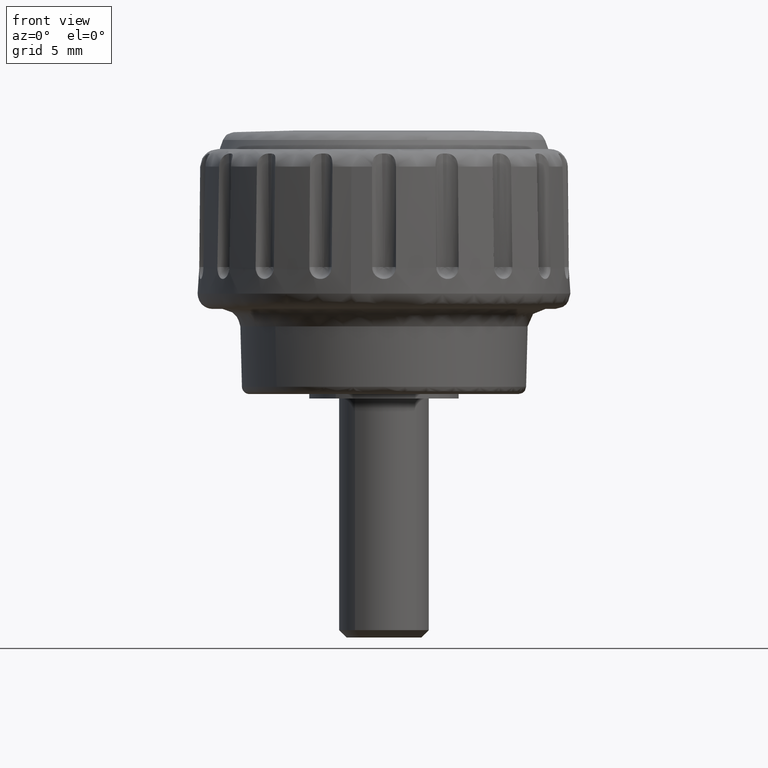
[diagram: clean part render]
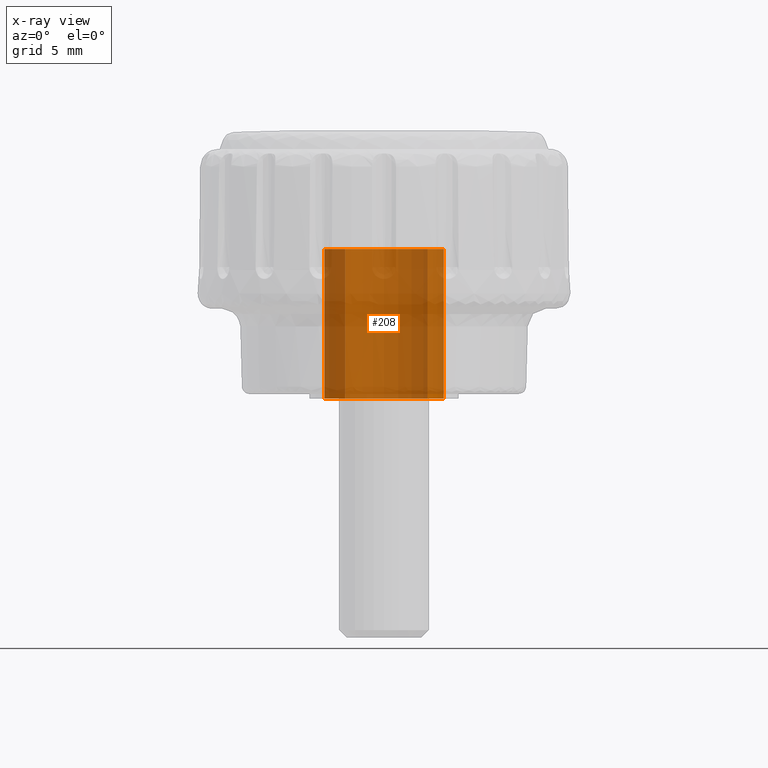
[diagram: x-ray — body ghosted, one internal face saturated and labeled with its STEP entity id]
A machine part, front view, then the same camera in x-ray: the body is ghosted and one INTERNAL B-rep face — a face not visible from any outside direction — is saturated and labeled: STEP entity #208.
In plain terms, the highlighted face is a freeform B-spline surface patch.
Its self-contained STEP definition (entity closure, byte-faithful):
#44=CARTESIAN_POINT('',(-2.582968153528102,-3.054222571761859,10.250000000000002));
#45=CARTESIAN_POINT('',(-2.670378691349159,-2.980299132926059,10.250000000000005));
#46=CARTESIAN_POINT('',(-2.753418302775015,-2.901497484049150,10.250000000000000));
#47=CARTESIAN_POINT('',(-5.654915786824165,-0.148079181274134,10.250000000000002));
#48=CARTESIAN_POINT('',(-2.901497484049150,2.753418302775015,10.250000000000000));
#49=CARTESIAN_POINT('',(-0.148079181274134,5.654915786824165,10.250000000000002));
#50=CARTESIAN_POINT('',(2.753418302775015,2.901497484049150,10.250000000000000));
#51=CARTESIAN_POINT('',(5.654915786824165,0.148079181274134,10.250000000000002));
#52=CARTESIAN_POINT('',(2.901497484049150,-2.753418302775015,10.250000000000000));
#53=CARTESIAN_POINT('',(-2.582968153528102,-3.054222571761859,-0.256250000000000));
#54=CARTESIAN_POINT('',(-2.670378691349159,-2.980299132926059,-0.256250000000000));
#55=CARTESIAN_POINT('',(-2.753418302775015,-2.901497484049150,-0.256250000000000));
#56=CARTESIAN_POINT('',(-5.654915786824165,-0.148079181274134,-0.256250000000000));
#57=CARTESIAN_POINT('',(-2.901497484049150,2.753418302775015,-0.256250000000000));
#58=CARTESIAN_POINT('',(-0.148079181274134,5.654915786824165,-0.256250000000000));
#59=CARTESIAN_POINT('',(2.753418302775015,2.901497484049150,-0.256250000000000));
#60=CARTESIAN_POINT('',(5.654915786824165,0.148079181274134,-0.256250000000000));
#61=CARTESIAN_POINT('',(2.901497484049150,-2.753418302775015,-0.256250000000000));
#69=(BOUNDED_SURFACE()B_SPLINE_SURFACE(2,1,((#44,#53),(#45,#54),(#46,#55),(#47,#56),(#48,#57),(#49,#58),(#50,#59),(#51,#60),(#52,#61)),.UNSPECIFIED.,.F.,.F.,.U.)B_SPLINE_SURFACE_WITH_KNOTS((3,2,2,2,3),(2,2),(0.0,0.265096679918781,6.892513677888300,13.519930675857820,20.147347673827340),(0.0,10.506250000000000),.UNSPECIFIED.)GEOMETRIC_REPRESENTATION_ITEM()RATIONAL_B_SPLINE_SURFACE(((0.977505800795127,0.977505800795127),(0.988284271247462,0.988284271247462),(1.0,1.0),(0.707106781186548,0.707106781186548),(1.0,1.0),(0.707106781186548,0.707106781186548),(1.0,1.0),(0.707106781186548,0.707106781186548),(1.0,1.0)))REPRESENTATION_ITEM('')SURFACE());
#70=CARTESIAN_POINT('',(-2.582968228409304,-3.054222662846994,10.000000000000311));
#71=VERTEX_POINT('',#70);
#72=CARTESIAN_POINT('',(-4.0,0.0,10.0));
#73=VERTEX_POINT('',#72);
#74=CARTESIAN_POINT('',(-2.582968228409304,-3.054222662846994,10.000000000000311));
#75=CARTESIAN_POINT('',(-2.790299187897088,-2.878929254946721,10.000000000000300));
#76=CARTESIAN_POINT('',(-3.150102602204959,-2.505548429863373,10.000000000000250));
#77=CARTESIAN_POINT('',(-3.524875563273476,-1.925377263401428,10.000000000000210));
#78=CARTESIAN_POINT('',(-3.793278250479340,-1.320193302661440,10.000000000000099));
#79=CARTESIAN_POINT('',(-3.959977261305121,-0.696848903108914,10.000000000000099));
#80=CARTESIAN_POINT('',(-4.000014350286992,-0.226250289663778,10.0));
#81=CARTESIAN_POINT('',(-4.0,0.0,10.0));
#82=B_SPLINE_CURVE_WITH_KNOTS('',3,(#74,#75,#76,#77,#78,#79,#80,#81),.UNSPECIFIED.,.F.,.U.,(4,1,1,1,1,4),(7.032450E-009,0.814502709721208,1.547557369222819,2.063407190099790,2.796462276849378,3.475213214888434),.UNSPECIFIED.);
#83=EDGE_CURVE('',#71,#73,#82,.T.);
#84=ORIENTED_EDGE('',*,*,#83,.T.);
#85=CARTESIAN_POINT('',(0.000000478248081,3.999999999999972,10.0));
#86=VERTEX_POINT('',#85);
#87=CARTESIAN_POINT('',(-4.0,0.0,10.0));
#88=CARTESIAN_POINT('',(-4.000101983396650,0.351803802842232,10.0));
#89=CARTESIAN_POINT('',(-3.929390376881856,0.883524720167455,10.000000000000011));
#90=CARTESIAN_POINT('',(-3.710593726569787,1.519333097755888,9.999999999999991));
#91=CARTESIAN_POINT('',(-3.482078247280734,1.991227958297576,10.000000000000011));
#92=CARTESIAN_POINT('',(-3.162900286440797,2.478584624450654,10.0));
#93=CARTESIAN_POINT('',(-2.661471402162749,3.021761900998665,10.000000000000011));
#94=CARTESIAN_POINT('',(-2.047731382651054,3.465352923066428,9.999999999999986));
#95=CARTESIAN_POINT('',(-1.339662867755248,3.792292001025145,10.000000000000030));
#96=CARTESIAN_POINT('',(-0.670860399013456,3.964179002919046,9.999999999999936));
#97=CARTESIAN_POINT('',(-0.204527711563020,4.000006663268072,10.000000000000110));
#98=CARTESIAN_POINT('',(0.000000478248081,3.999999999999972,10.0));
#99=B_SPLINE_CURVE_WITH_KNOTS('',3,(#87,#88,#89,#90,#91,#92,#93,#94,#95,#96,#97,#98),.UNSPECIFIED.,.F.,.U.,(4,1,1,1,1,1,1,1,1,4),(0.000000020633886,1.055376620540182,1.595342809258622,2.012589635222373,2.626185664075930,3.337938344018138,4.221519692194979,4.884203401033746,5.669608384431435,6.283195433223491),.UNSPECIFIED.);
#100=EDGE_CURVE('',#73,#86,#99,.T.);
#101=ORIENTED_EDGE('',*,*,#100,.T.);
#102=CARTESIAN_POINT('',(4.0,0.0,10.0));
#103=VERTEX_POINT('',#102);
#104=CARTESIAN_POINT('',(0.000000478248081,3.999999999999972,10.0));
#105=CARTESIAN_POINT('',(0.253619504692653,4.000029070373083,10.000000000000041));
#106=CARTESIAN_POINT('',(0.769028549815878,3.950820701903029,9.999999999999959));
#107=CARTESIAN_POINT('',(1.462579658958273,3.745091417141686,10.000000000000030));
#108=CARTESIAN_POINT('',(2.145257544536728,3.404080656601433,10.0));
#109=CARTESIAN_POINT('',(2.734831466035902,2.955539947859465,9.999999999999966));
#110=CARTESIAN_POINT('',(3.211926232240587,2.412553746691041,10.000000000000011));
#111=CARTESIAN_POINT('',(3.543780892948864,1.884916361316323,10.000000000000011));
#112=CARTESIAN_POINT('',(3.776492292563614,1.359937433050034,10.0));
#113=CARTESIAN_POINT('',(3.953428229594067,0.728112852075299,9.999999999999991));
#114=CARTESIAN_POINT('',(4.000040421017665,0.269981707979491,10.0));
#115=CARTESIAN_POINT('',(4.0,0.0,10.0));
#116=B_SPLINE_CURVE_WITH_KNOTS('',3,(#104,#105,#106,#107,#108,#109,#110,#111,#112,#113,#114,#115),.UNSPECIFIED.,.F.,.U.,(4,1,1,1,1,1,1,1,1,4),(0.000000020678510,0.760853242953878,1.546254916348981,2.159851792219121,3.043428951095123,3.755184453205834,4.319694080564363,4.908747613278798,5.473258363743080,6.283194894125577),.UNSPECIFIED.);
#117=EDGE_CURVE('',#86,#103,#116,.T.);
#118=ORIENTED_EDGE('',*,*,#117,.T.);
#119=CARTESIAN_POINT('',(2.901497394955244,-2.753418223205917,9.999999999999979));
#120=VERTEX_POINT('',#119);
#121=CARTESIAN_POINT('',(4.0,0.0,10.0));
#122=CARTESIAN_POINT('',(4.000024459200973,-0.237257680882633,10.000000000000020));
#123=CARTESIAN_POINT('',(3.967531257062970,-0.601040175948857,9.999999999999989));
#124=CARTESIAN_POINT('',(3.836597919139694,-1.172114771930265,9.999999999999991));
#125=CARTESIAN_POINT('',(3.648583269968377,-1.677936869591710,10.0));
#126=CARTESIAN_POINT('',(3.331132245179849,-2.245310415997200,9.999999999999989));
#127=CARTESIAN_POINT('',(3.064830690093533,-2.581333658981436,9.999999999999963));
#128=CARTESIAN_POINT('',(2.901497394955244,-2.753418223205917,9.999999999999979));
#129=B_SPLINE_CURVE_WITH_KNOTS('',3,(#121,#122,#123,#124,#125,#126,#127,#128),.UNSPECIFIED.,.F.,.U.,(4,1,1,1,1,4),(1.415859E-009,0.711771245148373,1.091382779315444,1.755702099893330,2.325119418991020,3.036890662723153),.UNSPECIFIED.);
#130=EDGE_CURVE('',#103,#120,#129,.T.);
#131=ORIENTED_EDGE('',*,*,#130,.T.);
#132=CARTESIAN_POINT('',(2.901497394980210,-2.753418223179607,3.191891E-016));
#133=VERTEX_POINT('',#132);
#134=CARTESIAN_POINT('',(2.901497394955244,-2.753418223205917,9.999999999999979));
#135=CARTESIAN_POINT('',(2.901497394980210,-2.753418223179607,3.191891E-016));
#136=QUASI_UNIFORM_CURVE('',1,(#134,#135),.UNSPECIFIED.,.F.,.U.);
#137=EDGE_CURVE('',#120,#133,#136,.T.);
#138=ORIENTED_EDGE('',*,*,#137,.T.);
#139=CARTESIAN_POINT('',(4.0,0.0,0.0));
#140=VERTEX_POINT('',#139);
#141=CARTESIAN_POINT('',(4.0,0.0,0.0));
#142=CARTESIAN_POINT('',(4.000022013707798,-0.237256711952043,2.750391E-017));
#143=CARTESIAN_POINT('',(3.961890894104607,-0.664310305085805,7.700996E-017));
#144=CARTESIAN_POINT('',(3.817230788683093,-1.232910900803179,1.429248E-016));
#145=CARTESIAN_POINT('',(3.605865902495320,-1.762724229833897,2.043432E-016));
#146=CARTESIAN_POINT('',(3.313075258301967,-2.271777193437851,2.633550E-016));
#147=CARTESIAN_POINT('',(3.043044579371638,-2.604271810264931,3.018994E-016));
#148=CARTESIAN_POINT('',(2.901497394980210,-2.753418223179607,3.191891E-016));
#149=B_SPLINE_CURVE_WITH_KNOTS('',3,(#141,#142,#143,#144,#145,#146,#147,#148),.UNSPECIFIED.,.F.,.U.,(4,1,1,1,1,4),(1.415751E-009,0.711771245139802,1.281188564236028,1.755702099872345,2.420022290616411,3.036890662686882),.UNSPECIFIED.);
#150=EDGE_CURVE('',#140,#133,#149,.T.);
#151=ORIENTED_EDGE('',*,*,#150,.F.);
#152=CARTESIAN_POINT('',(0.000000478248081,3.999999999999972,0.0));
#153=VERTEX_POINT('',#152);
#154=CARTESIAN_POINT('',(0.000000478248081,3.999999999999972,0.0));
#155=CARTESIAN_POINT('',(0.253619607521422,4.000029839558419,0.0));
#156=CARTESIAN_POINT('',(0.760847184068128,3.951598290334399,0.0));
#157=CARTESIAN_POINT('',(1.407503556769744,3.761934639911663,0.0));
#158=CARTESIAN_POINT('',(1.970635684387399,3.495564137214501,0.0));
#159=CARTESIAN_POINT('',(2.478589198260897,3.162902050585303,0.0));
#160=CARTESIAN_POINT('',(2.973455267360030,2.706027045536565,0.0));
#161=CARTESIAN_POINT('',(3.391108474729111,2.157081625448889,0.0));
#162=CARTESIAN_POINT('',(3.687738165194568,1.589602187701958,0.0));
#163=CARTESIAN_POINT('',(3.931034623833748,0.875344365924239,0.0));
#164=CARTESIAN_POINT('',(4.000102554191361,0.343623827290520,0.0));
#165=CARTESIAN_POINT('',(4.0,0.0,0.0));
#166=B_SPLINE_CURVE_WITH_KNOTS('',3,(#154,#155,#156,#157,#158,#159,#160,#161,#162,#163,#164,#165),.UNSPECIFIED.,.F.,.U.,(4,1,1,1,1,1,1,1,1,4),(0.000000020678510,0.760853242953878,1.521711134222385,2.012589462567297,2.626185438654046,3.337938057363771,4.025171578545965,4.687852418961647,5.252360191496149,6.283194894125577),.UNSPECIFIED.);
#167=EDGE_CURVE('',#153,#140,#166,.T.);
#168=ORIENTED_EDGE('',*,*,#167,.F.);
#169=CARTESIAN_POINT('',(-4.0,0.0,0.0));
#170=VERTEX_POINT('',#169);
#171=CARTESIAN_POINT('',(-4.0,0.0,0.0));
#172=CARTESIAN_POINT('',(-4.000052611099767,0.286347427830313,0.0));
#173=CARTESIAN_POINT('',(-3.954111025086566,0.711747059537301,0.0));
#174=CARTESIAN_POINT('',(-3.776931471223116,1.359742017541559,0.0));
#175=CARTESIAN_POINT('',(-3.560239297538355,1.856811215541755,0.0));
#176=CARTESIAN_POINT('',(-3.237351105357511,2.370155591860700,0.0));
#177=CARTESIAN_POINT('',(-2.921542777875132,2.747827188704590,0.0));
#178=CARTESIAN_POINT('',(-2.531459466797148,3.110187704479899,0.0));
#179=CARTESIAN_POINT('',(-2.046136180913371,3.461026821564083,0.0));
#180=CARTESIAN_POINT('',(-1.468854585606224,3.740584871083671,0.0));
#181=CARTESIAN_POINT('',(-0.760830476480561,3.948242805539528,0.0));
#182=CARTESIAN_POINT('',(-0.294529753636074,4.000060397230228,0.0));
#183=CARTESIAN_POINT('',(0.000000478248081,3.999999999999972,0.0));
#184=B_SPLINE_CURVE_WITH_KNOTS('',3,(#171,#172,#173,#174,#175,#176,#177,#178,#179,#180,#181,#182,#183),.UNSPECIFIED.,.F.,.U.,(4,1,1,1,1,1,1,1,1,1,4),(0.000000020633886,0.859027559162032,1.276273858302478,2.012589635222373,2.478924455853714,3.092513919406053,3.485199581273061,4.074258684006812,4.884203401033746,5.399621236052686,6.283195433223491),.UNSPECIFIED.);
#185=EDGE_CURVE('',#170,#153,#184,.T.);
#186=ORIENTED_EDGE('',*,*,#185,.F.);
#187=CARTESIAN_POINT('',(-2.582968228424603,-3.054222662834056,2.981400E-016));
#188=VERTEX_POINT('',#187);
#189=CARTESIAN_POINT('',(-2.582968228424603,-3.054222662834056,2.981400E-016));
#190=CARTESIAN_POINT('',(-2.755735290031389,-2.908137041031600,2.838797E-016));
#191=CARTESIAN_POINT('',(-3.031476620824352,-2.631554887867885,2.568810E-016));
#192=CARTESIAN_POINT('',(-3.387906180225674,-2.150866599625753,2.099583E-016));
#193=CARTESIAN_POINT('',(-3.648489912610621,-1.672593141488386,1.632713E-016));
#194=CARTESIAN_POINT('',(-3.850969645635739,-1.128648439121712,1.101738E-016));
#195=CARTESIAN_POINT('',(-3.972217168462076,-0.579199506253762,5.653894E-017));
#196=CARTESIAN_POINT('',(-4.000007862041529,-0.190050213772857,1.855188E-017));
#197=CARTESIAN_POINT('',(-4.0,0.0,0.0));
#198=B_SPLINE_CURVE_WITH_KNOTS('',3,(#189,#190,#191,#192,#193,#194,#195,#196,#197),.UNSPECIFIED.,.F.,.U.,(4,1,1,1,1,1,4),(7.032394E-009,0.678750945070819,1.167455815796902,1.791903039406660,2.307757406107886,2.905062419714399,3.475213214868400),.UNSPECIFIED.);
#199=EDGE_CURVE('',#188,#170,#198,.T.);
#200=ORIENTED_EDGE('',*,*,#199,.F.);
#201=CARTESIAN_POINT('',(-2.582968228409304,-3.054222662846994,10.000000000000311));
#202=CARTESIAN_POINT('',(-2.582968228424603,-3.054222662834056,2.981400E-016));
#203=QUASI_UNIFORM_CURVE('',1,(#201,#202),.UNSPECIFIED.,.F.,.U.);
#204=EDGE_CURVE('',#71,#188,#203,.T.);
#205=ORIENTED_EDGE('',*,*,#204,.F.);
#206=EDGE_LOOP('',(#84,#101,#118,#131,#138,#151,#168,#186,#200,#205));
#207=FACE_OUTER_BOUND('',#206,.T.);
#208=ADVANCED_FACE('',(#207),#69,.T.);